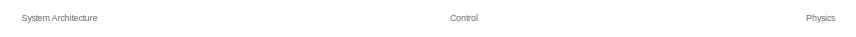
[diagram: root canvas - part 1/3, top left region]
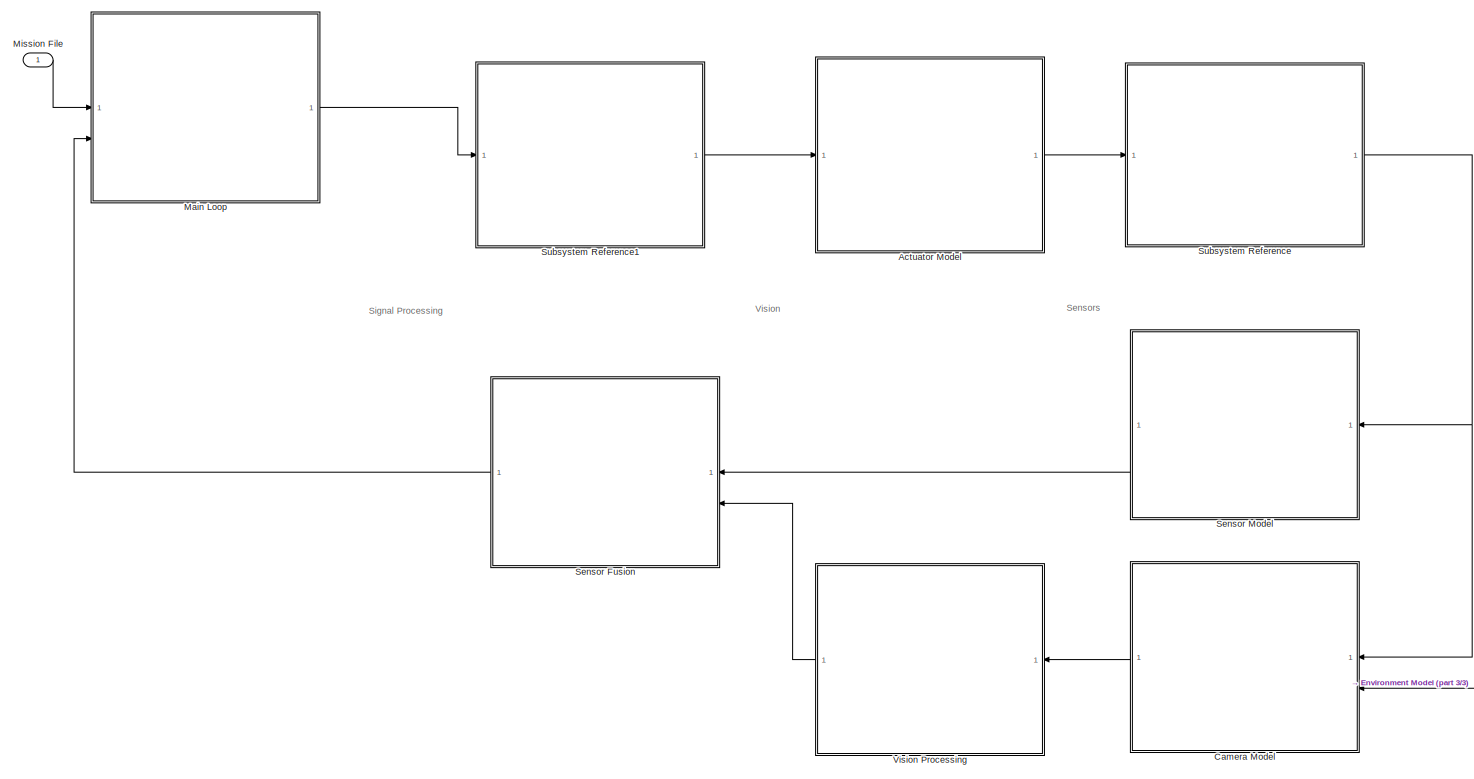
[diagram: root canvas - part 2/3, most of the canvas]
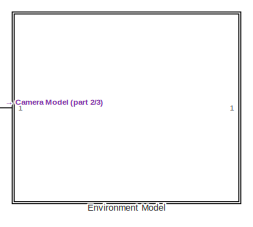
[diagram: root canvas - part 3/3, top right region]
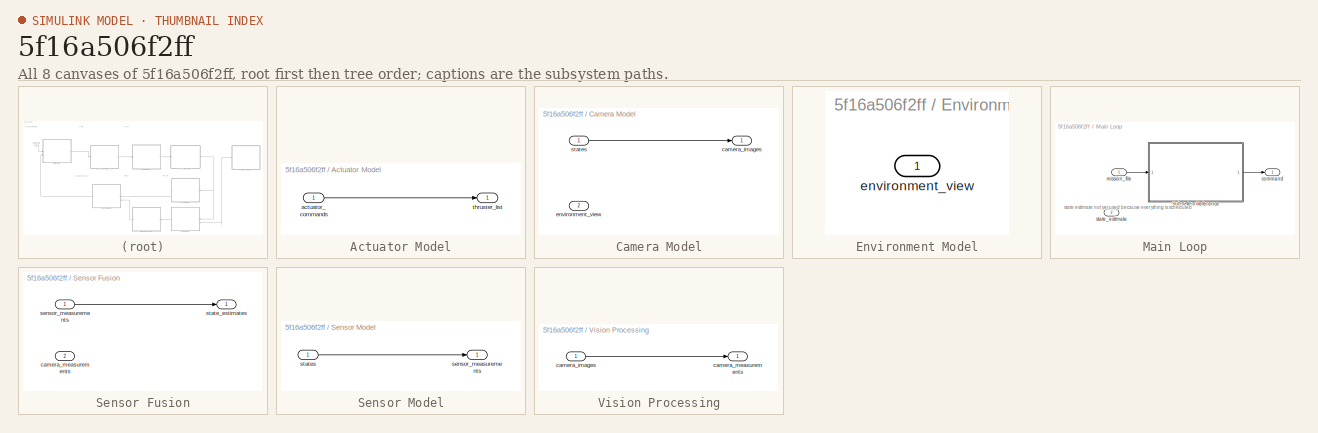
[diagram: thumbnail index - all 8 canvases of the model, root first then tree order]
MODEL slx_5f16a506f2ff
KIND model
CONFIG AbsTol = abs_tol
CONFIG EnableMultiTasking = off
CONFIG FixedStep = auto
CONFIG MaxStep = auto
CONFIG MinStep = auto
CONFIG RelTol = rel_tol
CONFIG SampleTimeConstraint = Unconstrained
CONFIG SolverName = VariableStepAuto
CONFIG StartTime = 0.0
CONFIG StopTime = tspan
BLOCK [SubSystem] Actuator Model
BLOCK [Inport] Actuator Model/actuator_commands
BLOCK [Outport] Actuator Model/thruster_list
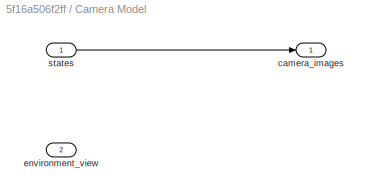
BLOCK [SubSystem] Camera Model
BLOCK [Outport] Camera Model/camera_images
BLOCK [Inport] Camera Model/environment_view
  Port = 2
BLOCK [Inport] Camera Model/states
BLOCK [SubSystem] Environment Model
BLOCK [Outport] Environment Model/environment_view
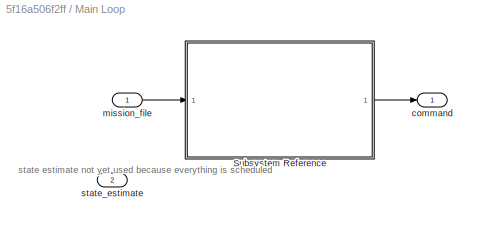
BLOCK [SubSystem] Main Loop
BLOCK [SubSystem] Main Loop/Subsystem Reference
  ReferencedSubsystem = mission_file_parser
BLOCK [Outport] Main Loop/command
BLOCK [Inport] Main Loop/mission_file
BLOCK [Inport] Main Loop/state_estimate
  Port = 2
BLOCK [Inport] Mission File
BLOCK [SubSystem] Sensor Fusion
BLOCK [Inport] Sensor Fusion/camera_measurements
  Port = 2
BLOCK [Inport] Sensor Fusion/sensor_measurements
BLOCK [Outport] Sensor Fusion/state_estimates
BLOCK [SubSystem] Sensor Model
BLOCK [Outport] Sensor Model/sensor_measurements
BLOCK [Inport] Sensor Model/states
BLOCK [SubSystem] Subsystem Reference
  ReferencedSubsystem = plant
BLOCK [SubSystem] Subsystem Reference1
  ReferencedSubsystem = controller
BLOCK [SubSystem] Vision Processing
BLOCK [Inport] Vision Processing/camera_images
BLOCK [Outport] Vision Processing/camera_measurements
ANNOTATION (root): Control
ANNOTATION (root): Physics
ANNOTATION (root): Sensors
ANNOTATION (root): Signal Processing
ANNOTATION (root): System Architecture
ANNOTATION (root): Vision
ANNOTATION Main Loop: state estimate not yet used because everything is scheduled
LINE Actuator Model/actuator_commands:1 -> Actuator Model/thruster_list:1
LINE Actuator Model:1 -> Subsystem Reference:1
LINE Camera Model/states:1 -> Camera Model/camera_images:1
LINE Camera Model:1 -> Vision Processing:1
LINE Environment Model:1 -> Camera Model:2
LINE Main Loop/Subsystem Reference:1 -> Main Loop/command:1
LINE Main Loop/mission_file:1 -> Main Loop/Subsystem Reference:1
LINE Main Loop:1 -> Subsystem Reference1:1
LINE Mission File:1 -> Main Loop:1
LINE Sensor Fusion/sensor_measurements:1 -> Sensor Fusion/state_estimates:1
LINE Sensor Fusion:1 -> Main Loop:2
LINE Sensor Model/states:1 -> Sensor Model/sensor_measurements:1
LINE Sensor Model:1 -> Sensor Fusion:1
LINE Subsystem Reference1:1 -> Actuator Model:1
NET Subsystem Reference:1 -> Camera Model:1, Sensor Model:1
LINE Vision Processing/camera_images:1 -> Vision Processing/camera_measurements:1
LINE Vision Processing:1 -> Sensor Fusion:2
note: NET lines group one-source signal fan-out (src -> all destinations, sorted); 1:1 wires keep LINE
